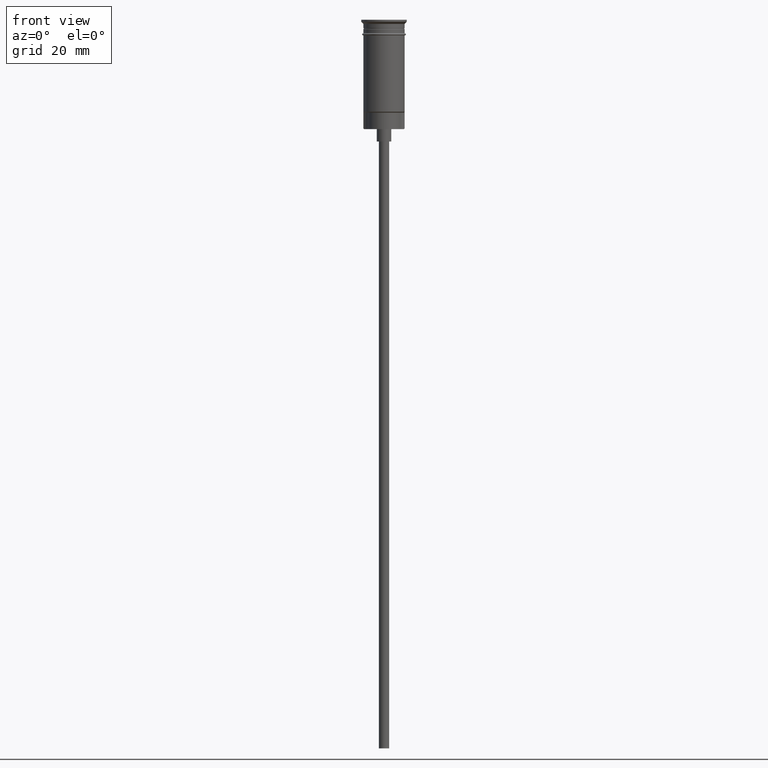
[diagram: clean part render]
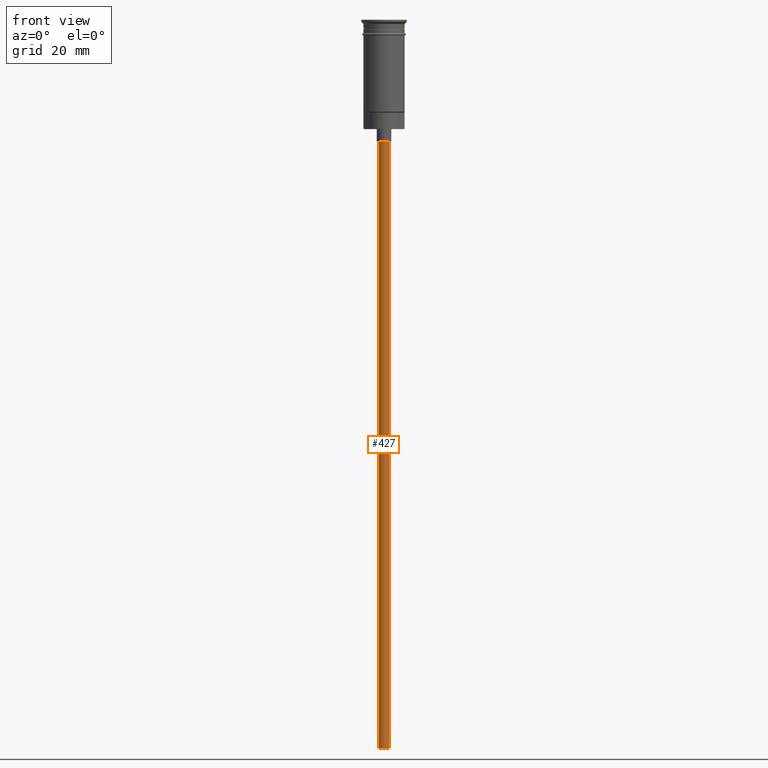
[diagram: same view with one face highlighted and labeled with its STEP entity id]
A machine part, front view. The second image highlights one B-rep face of the part: STEP entity #427.
In plain terms, the highlighted cylindrical surface (edge-blend (fillet) strip) has radius 1.25 mm, axis along (-0, -0, 1).
Its self-contained STEP definition (entity closure, byte-faithful):
#7 = FACE_OUTER_BOUND ( 'NONE', #920, .T. ) ;
#131 = DIRECTION ( 'NONE',  ( 0.000000000000000000, 0.000000000000000000, -1.000000000000000000 ) ) ;
#200 = DIRECTION ( 'NONE',  ( -0.000000000000000000, -0.000000000000000000, 1.000000000000000000 ) ) ;
#264 = CYLINDRICAL_SURFACE ( 'NONE', #956, 1.250000000000000000 ) ;
#314 = DIRECTION ( 'NONE',  ( -1.000000000000000000, 0.000000000000000000, 0.000000000000000000 ) ) ;
#320 = VECTOR ( 'NONE', #1547, 1000.000000000000000 ) ;
#337 = CARTESIAN_POINT ( 'NONE',  ( 1.250000000000000000, 0.000000000000000000, -176.5000000000000000 ) ) ;
#380 = EDGE_CURVE ( 'NONE', #1482, #558, #1166, .T. ) ;
#397 = DIRECTION ( 'NONE',  ( 1.000000000000000000, 0.000000000000000000, 0.000000000000000000 ) ) ;
#404 = VERTEX_POINT ( 'NONE', #1467 ) ;
#427 = ADVANCED_FACE ( 'NONE', ( #7 ), #264, .T. ) ;
#529 = AXIS2_PLACEMENT_3D ( 'NONE', #562, #1316, #314 ) ;
#531 = CIRCLE ( 'NONE', #1384, 1.250000000000000000 ) ;
#558 = VERTEX_POINT ( 'NONE', #1375 ) ;
#562 = CARTESIAN_POINT ( 'NONE',  ( 0.000000000000000000, 0.000000000000000000, -176.5000000000000000 ) ) ;
#611 = VERTEX_POINT ( 'NONE', #651 ) ;
#615 = ORIENTED_EDGE ( 'NONE', *, *, #380, .F. ) ;
#650 = ORIENTED_EDGE ( 'NONE', *, *, #1176, .T. ) ;
#651 = CARTESIAN_POINT ( 'NONE',  ( 1.250000000000000000, 0.000000000000000000, -29.50000000000000000 ) ) ;
#770 = CARTESIAN_POINT ( 'NONE',  ( 0.000000000000000000, 0.000000000000000000, -176.5000000000000000 ) ) ;
#790 = EDGE_CURVE ( 'NONE', #404, #1482, #1555, .T. ) ;
#920 = EDGE_LOOP ( 'NONE', ( #615, #1237, #650, #962 ) ) ;
#948 = DIRECTION ( 'NONE',  ( -1.000000000000000000, 0.000000000000000000, 0.000000000000000000 ) ) ;
#956 = AXIS2_PLACEMENT_3D ( 'NONE', #770, #1357, #397 ) ;
#962 = ORIENTED_EDGE ( 'NONE', *, *, #1329, .T. ) ;
#1166 = LINE ( 'NONE', #1393, #320 ) ;
#1176 = EDGE_CURVE ( 'NONE', #404, #611, #1420, .T. ) ;
#1237 = ORIENTED_EDGE ( 'NONE', *, *, #790, .F. ) ;
#1316 = DIRECTION ( 'NONE',  ( 0.000000000000000000, 0.000000000000000000, -1.000000000000000000 ) ) ;
#1329 = EDGE_CURVE ( 'NONE', #611, #558, #531, .T. ) ;
#1357 = DIRECTION ( 'NONE',  ( -0.000000000000000000, -0.000000000000000000, 1.000000000000000000 ) ) ;
#1375 = CARTESIAN_POINT ( 'NONE',  ( -1.250000000000000000, 1.530808498934191571E-16, -29.50000000000000000 ) ) ;
#1384 = AXIS2_PLACEMENT_3D ( 'NONE', #1581, #131, #948 ) ;
#1393 = CARTESIAN_POINT ( 'NONE',  ( -1.250000000000000000, 1.530808498934191571E-16, -176.5000000000000000 ) ) ;
#1420 = LINE ( 'NONE', #337, #1436 ) ;
#1436 = VECTOR ( 'NONE', #200, 1000.000000000000000 ) ;
#1467 = CARTESIAN_POINT ( 'NONE',  ( 1.250000000000000000, 0.000000000000000000, -176.5000000000000000 ) ) ;
#1482 = VERTEX_POINT ( 'NONE', #1509 ) ;
#1509 = CARTESIAN_POINT ( 'NONE',  ( -1.250000000000000000, 1.530808498934191571E-16, -176.5000000000000000 ) ) ;
#1547 = DIRECTION ( 'NONE',  ( -0.000000000000000000, -0.000000000000000000, 1.000000000000000000 ) ) ;
#1555 = CIRCLE ( 'NONE', #529, 1.250000000000000000 ) ;
#1581 = CARTESIAN_POINT ( 'NONE',  ( 0.000000000000000000, 0.000000000000000000, -29.50000000000000000 ) ) ;